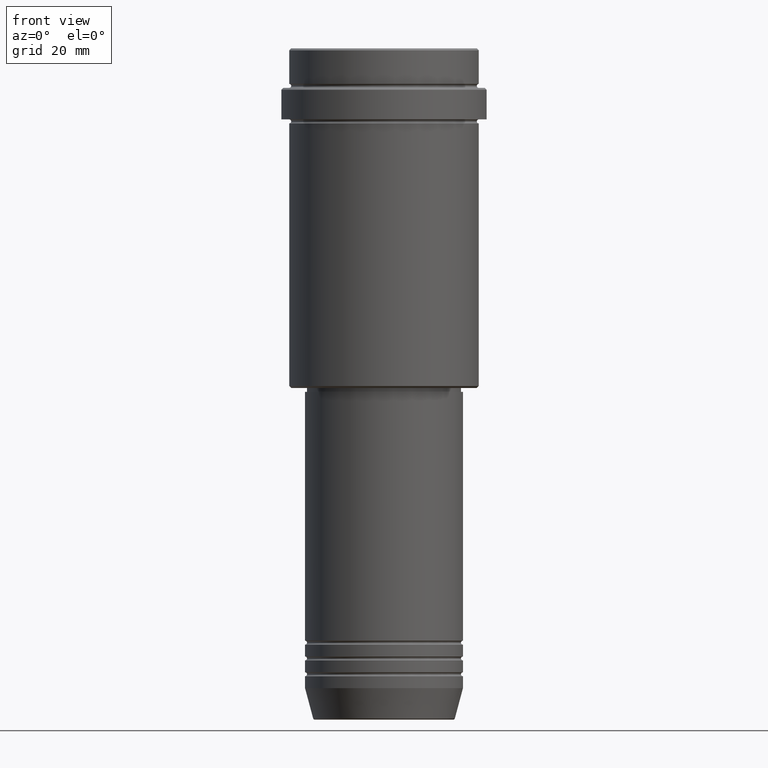
[diagram: clean part render]
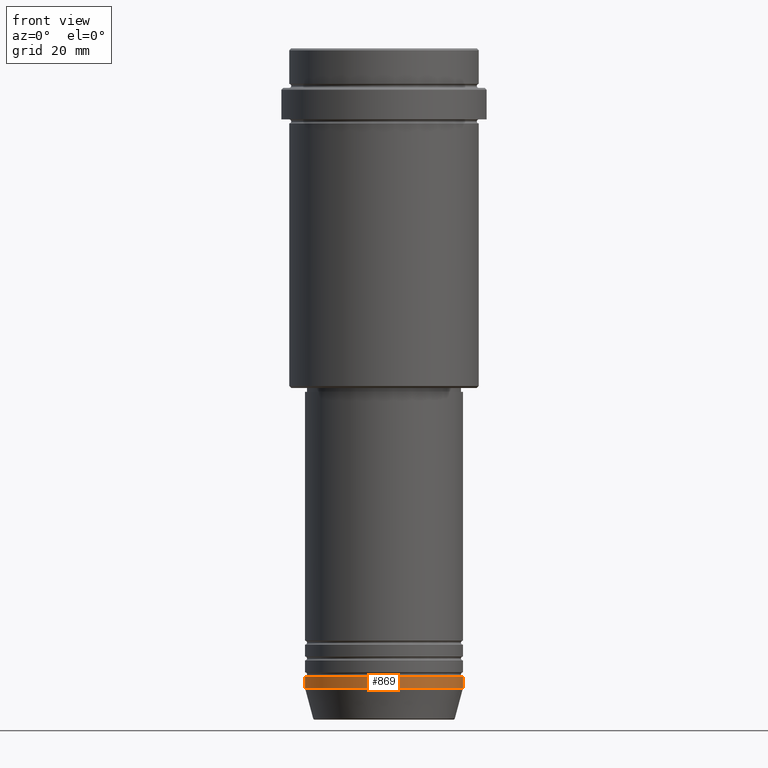
[diagram: same view with one face highlighted and labeled with its STEP entity id]
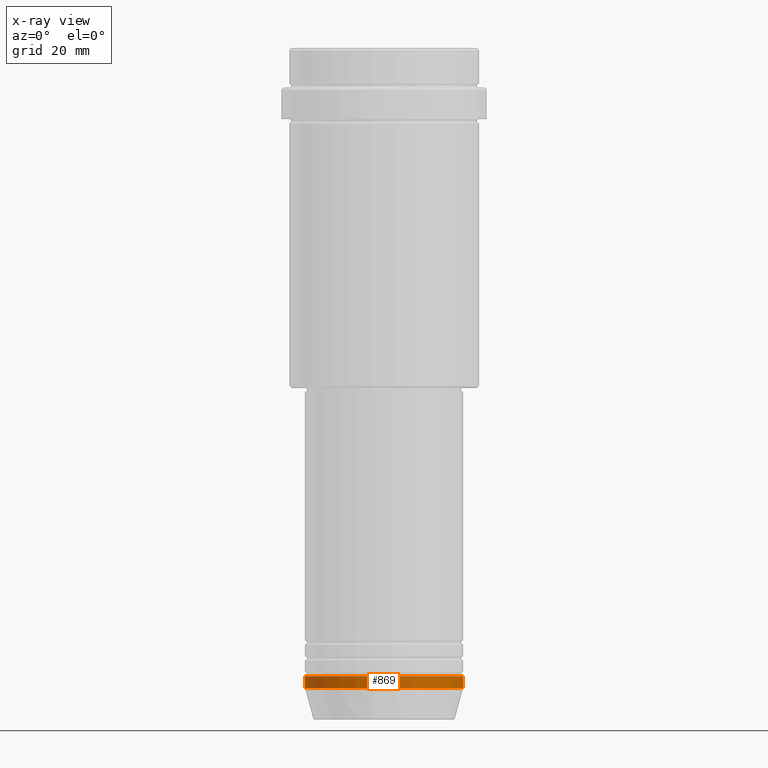
[diagram: x-ray of the same camera — body ghosted, the highlighted face saturated]
A machine part, front view. The second image highlights one B-rep face of the part: STEP entity #869.
The next image is the same camera in x-ray: the body ghosted, the highlighted face saturated — about 0% of this face is hidden behind the body in this view.
In plain terms, the highlighted cylindrical surface (partial cylindrical patch) has radius 20 mm, axis along (-0, -0, 1).
Its self-contained STEP definition (entity closure, byte-faithful):
#19 = DIRECTION ( 'NONE',  ( 1.000000000000000000, 0.000000000000000000, 0.000000000000000000 ) ) ;
#126 = EDGE_CURVE ( 'NONE', #619, #764, #275, .T. ) ;
#144 = DIRECTION ( 'NONE',  ( -0.000000000000000000, -0.000000000000000000, 1.000000000000000000 ) ) ;
#183 = ORIENTED_EDGE ( 'NONE', *, *, #521, .T. ) ;
#213 = DIRECTION ( 'NONE',  ( -0.000000000000000000, -0.000000000000000000, 1.000000000000000000 ) ) ;
#246 = AXIS2_PLACEMENT_3D ( 'NONE', #1234, #588, #712 ) ;
#248 = CARTESIAN_POINT ( 'NONE',  ( -20.00000000000000000, 2.449293598294706513E-15, 0.000000000000000000 ) ) ;
#270 = CARTESIAN_POINT ( 'NONE',  ( -20.00000000000000000, 2.449293598294706513E-15, -159.0000000000000000 ) ) ;
#275 = LINE ( 'NONE', #248, #1122 ) ;
#308 = CARTESIAN_POINT ( 'NONE',  ( 0.000000000000000000, 0.000000000000000000, 0.000000000000000000 ) ) ;
#345 = CIRCLE ( 'NONE', #246, 20.00000000000000000 ) ;
#364 = AXIS2_PLACEMENT_3D ( 'NONE', #308, #213, #738 ) ;
#419 = EDGE_CURVE ( 'NONE', #619, #752, #1030, .T. ) ;
#427 = AXIS2_PLACEMENT_3D ( 'NONE', #570, #144, #19 ) ;
#439 = ORIENTED_EDGE ( 'NONE', *, *, #419, .T. ) ;
#521 = EDGE_CURVE ( 'NONE', #752, #1224, #1162, .T. ) ;
#570 = CARTESIAN_POINT ( 'NONE',  ( 0.000000000000000000, 0.000000000000000000, -162.0000000000000000 ) ) ;
#572 = CARTESIAN_POINT ( 'NONE',  ( -20.00000000000000000, 2.449293598294706513E-15, -162.0000000000000000 ) ) ;
#588 = DIRECTION ( 'NONE',  ( -0.000000000000000000, -0.000000000000000000, 1.000000000000000000 ) ) ;
#619 = VERTEX_POINT ( 'NONE', #572 ) ;
#621 = CARTESIAN_POINT ( 'NONE',  ( 20.00000000000000000, 0.000000000000000000, 0.000000000000000000 ) ) ;
#694 = EDGE_LOOP ( 'NONE', ( #751, #439, #183, #851 ) ) ;
#712 = DIRECTION ( 'NONE',  ( 1.000000000000000000, 0.000000000000000000, 0.000000000000000000 ) ) ;
#738 = DIRECTION ( 'NONE',  ( 1.000000000000000000, 0.000000000000000000, 0.000000000000000000 ) ) ;
#751 = ORIENTED_EDGE ( 'NONE', *, *, #126, .F. ) ;
#752 = VERTEX_POINT ( 'NONE', #834 ) ;
#764 = VERTEX_POINT ( 'NONE', #270 ) ;
#834 = CARTESIAN_POINT ( 'NONE',  ( 20.00000000000000000, 0.000000000000000000, -162.0000000000000000 ) ) ;
#845 = CYLINDRICAL_SURFACE ( 'NONE', #364, 20.00000000000000000 ) ;
#851 = ORIENTED_EDGE ( 'NONE', *, *, #1279, .F. ) ;
#869 = ADVANCED_FACE ( 'NONE', ( #1172 ), #845, .T. ) ;
#871 = CARTESIAN_POINT ( 'NONE',  ( 20.00000000000000000, 0.000000000000000000, -159.0000000000000000 ) ) ;
#898 = VECTOR ( 'NONE', #1044, 1000.000000000000000 ) ;
#1028 = DIRECTION ( 'NONE',  ( -0.000000000000000000, -0.000000000000000000, 1.000000000000000000 ) ) ;
#1030 = CIRCLE ( 'NONE', #427, 20.00000000000000000 ) ;
#1044 = DIRECTION ( 'NONE',  ( -0.000000000000000000, -0.000000000000000000, 1.000000000000000000 ) ) ;
#1122 = VECTOR ( 'NONE', #1028, 1000.000000000000000 ) ;
#1162 = LINE ( 'NONE', #621, #898 ) ;
#1172 = FACE_OUTER_BOUND ( 'NONE', #694, .T. ) ;
#1224 = VERTEX_POINT ( 'NONE', #871 ) ;
#1234 = CARTESIAN_POINT ( 'NONE',  ( 0.000000000000000000, 0.000000000000000000, -159.0000000000000000 ) ) ;
#1279 = EDGE_CURVE ( 'NONE', #764, #1224, #345, .T. ) ;